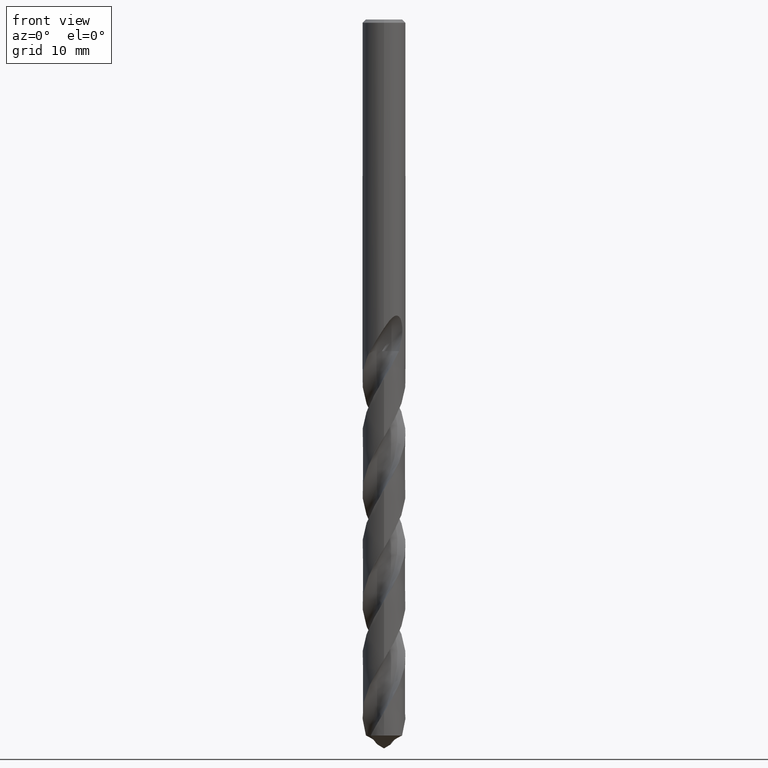
[diagram: clean part render]
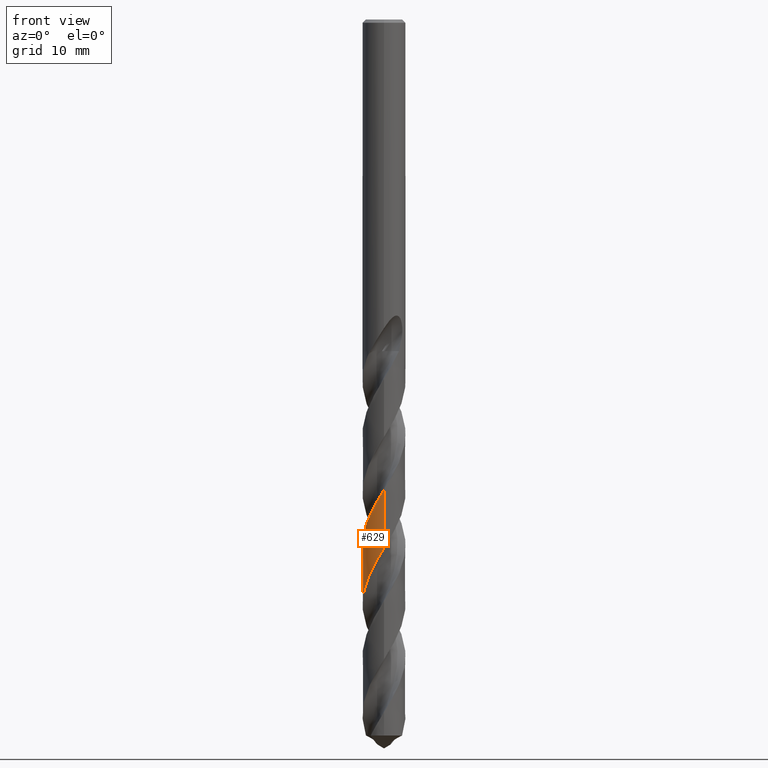
[diagram: same view with one face highlighted and labeled with its STEP entity id]
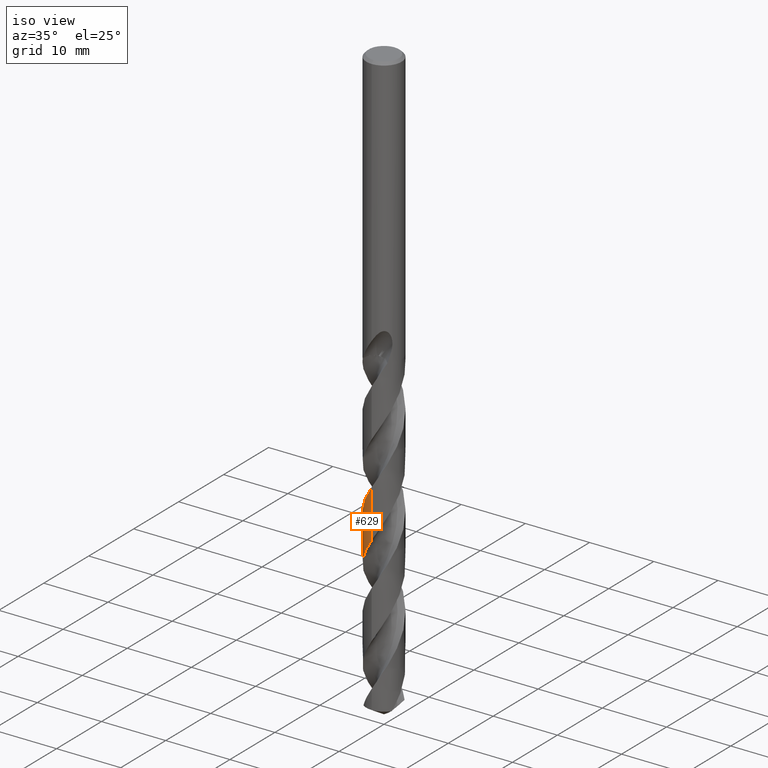
[diagram: same view with one face highlighted and labeled with its STEP entity id]
A machine part, front view. The second image highlights one B-rep face of the part: STEP entity #629.
A second angle (iso view) of the same face is appended — the face is thin or edge-on in the first view.
In plain terms, the highlighted conical surface has half-angle 0 deg.
Its self-contained STEP definition (entity closure, byte-faithful):
#281=VERTEX_POINT('',#781);
#439=EDGE_CURVE('',#281,#655,#955,.T.);
#443=EDGE_CURVE('',#449,#281,#959,.T.);
#449=VERTEX_POINT('',#965);
#539=EDGE_CURVE('',#655,#559,#1062,.T.);
#559=VERTEX_POINT('',#1083);
#629=ADVANCED_FACE('',(#1159),#1160,.T.);
#655=VERTEX_POINT('',#1188);
#719=EDGE_CURVE('',#559,#449,#1259,.T.);
#781=CARTESIAN_POINT('',(7.65517310989221E-014,-2.74993604513519,-59.9792857280727));
#955=B_SPLINE_CURVE_WITH_KNOTS('',3,(#4090,#4091,#4092,#4093,#4094,#4095,#4096,#4097,#4098,#4099,#4100,#4101,#4102,#4103,#4104,#4105,#4106,#4107,#4108,#4109,#4110,#4111,#4112,#4113,#4114,#4115,#4116,#4117,#4118,#4119,#4120,#4121,#4122,#4123,#4124,#4125,#4126,#4127,#4128,#4129,#4130,#4131,#4132,#4133,#4134,#4135,#4136,#4137,#4138,#4139,#4140,#4141,#4142,#4143,#4144,#4145,#4146,#4147,#4148,#4149,#4150,#4151,#4152,#4153,#4154,#4155,#4156,#4157,#4158,#4159,#4160,#4161,#4162,#4163,#4164,#4165,#4166,#4167,#4168,#4169,#4170,#4171,#4172,#4173,#4174,#4175,#4176,#4177,#4178,#4179,#4180,#4181,#4182,#4183,#4184,#4185,#4186,#4187,#4188,#4189,#4190,#4191,#4192,#4193,#4194,#4195,#4196,#4197,#4198,#4199,#4200,#4201,#4202,#4203,#4204,#4205,#4206,#4207,#4208,#4209,#4210,#4211,#4212,#4213,#4214,#4215,#4216,#4217,#4218,#4219,#4220,#4221,#4222,#4223,#4224,#4225,#4226,#4227,#4228,#4229,#4230,#4231,#4232,#4233,#4234,#4235,#4236,#4237,#4238,#4239,#4240,#4241,#4242,#4243,#4244,#4245,#4246,#4247,#4248,#4249,#4250,#4251,#4252,#4253,#4254,#4255,#4256,#4257,#4258,#4259,#4260,#4261,#4262,#4263,#4264,#4265,#4266,#4267),.UNSPECIFIED.,.F.,.F.,(4,2,2,2,2,2,2,2,2,2,2,2,2,2,2,2,2,2,2,2,2,2,2,2,2,2,2,2,2,2,2,2,2,2,2,2,2,2,2,2,2,2,2,2,2,2,2,2,2,2,2,2,2,2,2,2,2,2,2,2,2,2,2,2,2,2,2,2,2,2,2,2,2,2,2,2,2,2,2,2,2,2,2,2,2,2,2,2,4),(0.0,0.140588820206105,0.216394991773302,0.236300292402017,0.249983846422913,0.259429389218857,0.265975424117487,0.270804573774558,0.274554036334517,0.277481782876244,0.279777914966037,0.28158480501633,0.283010454447156,0.605032100374304,0.682048411631251,0.724396175975261,0.760046270123634,0.802415389760059,0.879572661205554,0.981124293821383,1.39876659772418,1.64556568866317,2.11782906224963,3.27480992442227,3.87084418904796,5.32022392279056,5.52729225811691,7.05155099443035,7.48975542280652,8.38688910515015,9.34321251345018,10.2311919895154,11.1829594596095,12.2275320942339,12.8436391510004,13.6774595306437,14.1274023234518,15.0670532109638,15.9495492538524,16.8630148812239,17.7449957716031,18.6688050533717,19.550958581088,20.4711024017112,21.3532704595127,22.2731826720116,23.2130557427232,23.6858159909334,24.5520593073657,25.0327168030143,25.4942694420606,26.3669418235557,26.8473635251333,27.3020830546743,28.1837118865057,28.6638127141034,29.1099341246332,30.0007204592639,30.4804580585441,30.9180506200987,31.8187018495253,32.7739800312088,33.6636370904211,34.6138739745824,35.6604849852681,36.2708607787906,37.1044708933785,37.5539778774058,38.4911066062102,39.3727049487115,40.2866107685227,41.1678935284109,42.0882972831729,42.9695390428673,43.8902538562774,44.7715272820549,45.6915634848673,46.5729125823157,47.4915780773882,48.3728448427724,49.2925230355489,50.0937919575019,50.6757709514412,51.501936378326,52.0398436497128,52.5034392707608,53.322980293566,54.5649933178882,55.8054661136322),.UNSPECIFIED.);
#959=LINE('',#4272,#4273);
#965=CARTESIAN_POINT('',(1.62927083348499E-013,-2.74995129477362,-67.4588724652079));
#1062=LINE('',#5258,#5259);
#1083=CARTESIAN_POINT('',(-6.57420405194411E-013,2.74998023373711,-81.652749157832));
#1159=FACE_OUTER_BOUND('',#6207,.T.);
#1160=CONICAL_SURFACE('',#6208,2.74995,2.03883435910483E-006);
#1188=CARTESIAN_POINT('',(1.64849716867921E-014,2.74996498421071,-74.1732173695017));
#1259=B_SPLINE_CURVE_WITH_KNOTS('',3,(#7970,#7971,#7972,#7973,#7974,#7975,#7976,#7977,#7978,#7979,#7980,#7981,#7982,#7983,#7984,#7985,#7986,#7987,#7988,#7989,#7990,#7991,#7992,#7993,#7994,#7995,#7996,#7997,#7998,#7999,#8000,#8001,#8002,#8003,#8004,#8005,#8006,#8007,#8008,#8009,#8010,#8011,#8012,#8013,#8014,#8015,#8016,#8017,#8018,#8019,#8020,#8021,#8022,#8023,#8024,#8025,#8026,#8027,#8028,#8029,#8030,#8031,#8032,#8033,#8034,#8035,#8036,#8037,#8038,#8039,#8040,#8041,#8042,#8043,#8044,#8045,#8046,#8047,#8048,#8049,#8050,#8051,#8052,#8053,#8054,#8055,#8056,#8057,#8058,#8059,#8060,#8061,#8062,#8063,#8064,#8065,#8066,#8067,#8068,#8069,#8070,#8071,#8072,#8073,#8074,#8075,#8076,#8077,#8078,#8079,#8080,#8081,#8082,#8083,#8084,#8085,#8086,#8087,#8088,#8089,#8090,#8091,#8092,#8093,#8094,#8095,#8096,#8097,#8098,#8099,#8100,#8101,#8102,#8103,#8104,#8105,#8106,#8107,#8108,#8109,#8110,#8111,#8112,#8113,#8114,#8115,#8116,#8117,#8118,#8119,#8120,#8121,#8122,#8123,#8124,#8125),.UNSPECIFIED.,.F.,.F.,(4,2,2,2,2,2,2,2,2,2,2,2,2,2,2,2,2,2,2,2,2,2,2,2,2,2,2,2,2,2,2,2,2,2,2,2,2,2,2,2,2,2,2,2,2,2,2,2,2,2,2,2,2,2,2,2,2,2,2,2,2,2,2,2,2,2,2,2,2,2,2,2,2,2,2,2,2,4),(0.0,0.958681812453004,1.42279214784369,2.32930747449646,3.24913789640782,4.12304033759562,5.01878933135682,5.25202407512032,5.96763729708228,6.88346046908363,7.11253215243259,7.47354410330587,8.48621047270233,8.94993901807418,9.68170474262535,10.5983958426063,11.5096810710679,12.4257870852803,13.3394869818861,14.2550886814,15.1711346145442,16.0863519210077,17.0046875133906,17.9085522677297,18.8296778609539,20.2906136818509,20.4640657949844,21.4908594426852,21.9545803036435,22.6877352532038,23.6043587795395,24.5156655501266,25.4214793567687,26.3196177562414,27.2650010747521,28.1643602498584,29.0792952395591,29.9986253209663,30.8804481221597,31.803666438581,32.6013160345856,33.0662587615269,33.8340563995323,34.7530018459168,34.9828238732529,35.3437852641017,36.3604685507797,36.8257682862252,37.5602226954175,38.4800430137098,39.3943400610957,40.3135267780704,41.2303030721472,42.1489776609391,43.0681696575775,43.98652992492,44.9079238337339,45.8148048632456,46.7390493347768,48.1448353543361,48.3515896284398,50.0949716098029,50.199449755735,51.8501597761085,52.3291725675976,53.1082002077543,53.6315873530301,54.2510773953983,55.3426974441594,56.0465085868151,56.5008652789789,56.5861794289881,56.7697692110666,56.8322002359557,56.8942205234714,56.9828736804837,57.209423393245,57.7564193762052),.UNSPECIFIED.);
#4090=CARTESIAN_POINT('',(-1.9113919779581,1.97700044832147,-42.305));
#4091=CARTESIAN_POINT('',(-1.894743940104,1.99309612217607,-42.3457419595829));
#4092=CARTESIAN_POINT('',(-1.87783038380539,2.0090424523,-42.3865415338449));
#4093=CARTESIAN_POINT('',(-1.85130960978791,2.03341181438453,-42.4492797021151));
#4094=CARTESIAN_POINT('',(-1.84193920616107,2.04190433824194,-42.4712189937783));
#4095=CARTESIAN_POINT('',(-1.82997803973447,2.05259439377379,-42.4989100176442));
#4096=CARTESIAN_POINT('',(-1.82748413524038,2.05481512942488,-42.5046666530434));
#4097=CARTESIAN_POINT('',(-1.82326438257404,2.05855888580528,-42.5143779523837));
#4098=CARTESIAN_POINT('',(-1.82154226383911,2.06008289530852,-42.5183330987502));
#4099=CARTESIAN_POINT('',(-1.81862595972252,2.06265718805151,-42.5250170322478));
#4100=CARTESIAN_POINT('',(-1.81743350733632,2.06370795871484,-42.5277461347274));
#4101=CARTESIAN_POINT('',(-1.81541205586459,2.06548611650775,-42.5323658748261));
#4102=CARTESIAN_POINT('',(-1.81458387030021,2.06621374272279,-42.5342566915751));
#4103=CARTESIAN_POINT('',(-1.81314343512941,2.06747774332619,-42.5375420384601));
#4104=CARTESIAN_POINT('',(-1.8125315277476,2.06801421966841,-42.5389366493453));
#4105=CARTESIAN_POINT('',(-1.81144380923533,2.06896699887436,-42.5414138590457));
#4106=CARTESIAN_POINT('',(-1.81096816036643,2.06938335043364,-42.542496497705));
#4107=CARTESIAN_POINT('',(-1.81012067307331,2.0701246685709,-42.5444243800094));
#4108=CARTESIAN_POINT('',(-1.80974893051702,2.07044966435778,-42.5452696484809));
#4109=CARTESIAN_POINT('',(-1.80908537965989,2.07102945809012,-42.5467777526635));
#4110=CARTESIAN_POINT('',(-1.80879362874882,2.07128427389434,-42.5474406041927));
#4111=CARTESIAN_POINT('',(-1.80827212872676,2.07173955875016,-42.5486250224364));
#4112=CARTESIAN_POINT('',(-1.80804241451758,2.07194003871035,-42.5491465989439));
#4113=CARTESIAN_POINT('',(-1.80763135351609,2.07229866618141,-42.5500796721625));
#4114=CARTESIAN_POINT('',(-1.8074500280844,2.07245682046255,-42.5504911751023));
#4115=CARTESIAN_POINT('',(-1.76630348449106,2.10833583501807,-42.6438493348147));
#4116=CARTESIAN_POINT('',(-1.72450002092678,2.14270816188777,-42.7340307008702));
#4117=CARTESIAN_POINT('',(-1.66949735191186,2.18515778825007,-42.8473510876451));
#4118=CARTESIAN_POINT('',(-1.6587954913433,2.19329340667042,-42.8691709178372));
#4119=CARTESIAN_POINT('',(-1.64205484811177,2.20582585224884,-42.9029832185778));
#4120=CARTESIAN_POINT('',(-1.63609024785174,2.21025359588104,-42.9149685820559));
#4121=CARTESIAN_POINT('',(-1.62505438196182,2.21837657675527,-42.9370386361662));
#4122=CARTESIAN_POINT('',(-1.61999310877393,2.22207537546535,-42.9471199726858));
#4123=CARTESIAN_POINT('',(-1.60887728777279,2.23014058077048,-42.9691789655213));
#4124=CARTESIAN_POINT('',(-1.60281805132621,2.23449944370693,-42.9811504921269));
#4125=CARTESIAN_POINT('',(-1.58565792644346,2.24673809974392,-43.0149204191345));
#4126=CARTESIAN_POINT('',(-1.57451437672471,2.25456169358416,-43.0366928489186));
#4127=CARTESIAN_POINT('',(-1.54854940154387,2.27250417866659,-43.0871409344355));
#4128=CARTESIAN_POINT('',(-1.53350788815496,2.28268499424364,-43.1161557841741));
#4129=CARTESIAN_POINT('',(-1.4551293410424,2.33458290225321,-43.2671417223702));
#4130=CARTESIAN_POINT('',(-1.39081285657444,2.37342684167067,-43.3896236930033));
#4131=CARTESIAN_POINT('',(-1.28693975794124,2.43057393314012,-43.5840942157036));
#4132=CARTESIAN_POINT('',(-1.24790541059174,2.45084182394499,-43.6564587497205));
#4133=CARTESIAN_POINT('',(-1.13297941863556,2.50706725061463,-43.8671730737131));
#4134=CARTESIAN_POINT('',(-1.055779199868,2.54054582447,-44.0056649378213));
#4135=CARTESIAN_POINT('',(-0.784564993522744,2.64365036163018,-44.4832395295707));
#4136=CARTESIAN_POINT('',(-0.584195309418614,2.695052183815,-44.8203688155056));
#4137=CARTESIAN_POINT('',(-0.274421229513238,2.7382450589428,-45.3337435102955));
#4138=CARTESIAN_POINT('',(-0.168420952684127,2.74679720194915,-45.5081579040113));
#4139=CARTESIAN_POINT('',(0.195869080430607,2.75504923627413,-46.1075344786688));
#4140=CARTESIAN_POINT('',(0.453781917847988,2.72451261758523,-46.5304586777404));
#4141=CARTESIAN_POINT('',(0.73951747220665,2.64886429901515,-47.0155984959263));
#4142=CARTESIAN_POINT('',(0.775034302211687,2.63869096751904,-47.0762139747045));
#4143=CARTESIAN_POINT('',(1.07018736651325,2.54767586657952,-47.5833962872619));
#4144=CARTESIAN_POINT('',(1.31678658674724,2.42941522872776,-48.0282795587887));
#4145=CARTESIAN_POINT('',(1.60672203807683,2.23306484294692,-48.6032562272426));
#4146=CARTESIAN_POINT('',(1.66953537333916,2.1864991285998,-48.7315508866097));
#4147=CARTESIAN_POINT('',(1.8545904790876,2.03669042850556,-49.1229293086693));
#4148=CARTESIAN_POINT('',(1.96993634707983,1.92535584742073,-49.3856035782784));
#4149=CARTESIAN_POINT('',(2.18692302562782,1.67586084770147,-49.9287683755805));
#4150=CARTESIAN_POINT('',(2.28662948119147,1.53702518819936,-50.2079792898446));
#4151=CARTESIAN_POINT('',(2.45285571090553,1.25324281036752,-50.7485747308074));
#4152=CARTESIAN_POINT('',(2.52096151173784,1.10991083596024,-51.0085634729712));
#4153=CARTESIAN_POINT('',(2.63573101125555,0.802379541817631,-51.5477453499152));
#4154=CARTESIAN_POINT('',(2.68022281830354,0.638176126017676,-51.8257033823259));
#4155=CARTESIAN_POINT('',(2.74119327253798,0.287438197538147,-52.410930441962));
#4156=CARTESIAN_POINT('',(2.75437977071265,0.101067769026533,-52.716533026145));
#4157=CARTESIAN_POINT('',(2.74519013097768,-0.195177919116839,-53.2032353072358));
#4158=CARTESIAN_POINT('',(2.73519344615465,-0.304745752438369,-53.3834660202643));
#4159=CARTESIAN_POINT('',(2.69631182348151,-0.560451040683601,-53.8085125862416));
#4160=CARTESIAN_POINT('',(2.66205445498047,-0.705464494985707,-54.0528002959389));
#4161=CARTESIAN_POINT('',(2.59150653018454,-0.923376692897725,-54.4291380135432));
#4162=CARTESIAN_POINT('',(2.56344185921974,-0.998651223959049,-54.5609479285616));
#4163=CARTESIAN_POINT('',(2.46669019917797,-1.22705589121061,-54.9682336199998));
#4164=CARTESIAN_POINT('',(2.38730089634989,-1.37512660637434,-55.243113590228));
#4165=CARTESIAN_POINT('',(2.2082700175127,-1.64633403979882,-55.7773691160278));
#4166=CARTESIAN_POINT('',(2.11040614796979,-1.77005850605619,-56.0355932244241));
#4167=CARTESIAN_POINT('',(1.89067253284894,-2.00351114085867,-56.5619845645753));
#4168=CARTESIAN_POINT('',(1.76862178961841,-2.11202037441629,-56.8292468265391));
#4169=CARTESIAN_POINT('',(1.5113963907339,-2.30272489480461,-57.3556779930495));
#4170=CARTESIAN_POINT('',(1.3771760981815,-2.38543410698342,-57.6137591432889));
#4171=CARTESIAN_POINT('',(1.08925280603902,-2.53038555926188,-58.1430362968316));
#4172=CARTESIAN_POINT('',(0.935650757564323,-2.59110656088594,-58.413311085189));
#4173=CARTESIAN_POINT('',(0.626711927572781,-2.68218583355171,-58.9428299642358));
#4174=CARTESIAN_POINT('',(0.472196339105899,-2.71366325540887,-59.2009618048157));
#4175=CARTESIAN_POINT('',(0.152594428329954,-2.75060727543127,-59.729219071384));
#4176=CARTESIAN_POINT('',(-0.0118636974025957,-2.75480272318291,-59.9984301478189));
#4177=CARTESIAN_POINT('',(-0.332643878497826,-2.73427425943416,-60.5268815926462));
#4178=CARTESIAN_POINT('',(-0.488575043159733,-2.7107657880878,-60.7850189552561));
#4179=CARTESIAN_POINT('',(-0.801388590209355,-2.63569848445957,-61.313215245074));
#4180=CARTESIAN_POINT('',(-0.957246410360178,-2.58316916435686,-61.5823594477598));
#4181=CARTESIAN_POINT('',(-1.26085268523191,-2.44959610114435,-62.1276650103822));
#4182=CARTESIAN_POINT('',(-1.40786410820337,-2.36817351686965,-62.4025991370344));
#4183=CARTESIAN_POINT('',(-1.61638253769495,-2.22634461038114,-62.8166432148918));
#4184=CARTESIAN_POINT('',(-1.68391674967907,-2.17571131598149,-62.9550594427619));
#4185=CARTESIAN_POINT('',(-1.86825964608187,-2.02377747494107,-63.3476594400581));
#4186=CARTESIAN_POINT('',(-1.97904240589388,-1.91558841225551,-63.6014435197004));
#4187=CARTESIAN_POINT('',(-2.13626296709261,-1.73376238582404,-63.9963409872026));
#4188=CARTESIAN_POINT('',(-2.18931449382984,-1.66627179275821,-64.1371492948268));
#4189=CARTESIAN_POINT('',(-2.28697294539213,-1.52929515138424,-64.4133476745044));
#4190=CARTESIAN_POINT('',(-2.33175240515634,-1.46010692872375,-64.548510111189));
#4191=CARTESIAN_POINT('',(-2.45200056009646,-1.25464815903005,-64.9397633048158));
#4192=CARTESIAN_POINT('',(-2.51911136427516,-1.11379827967663,-65.1954563273553));
#4193=CARTESIAN_POINT('',(-2.60412658952322,-0.887743745742532,-65.592220723369));
#4194=CARTESIAN_POINT('',(-2.63054738428878,-0.806097190189907,-65.7329775087448));
#4195=CARTESIAN_POINT('',(-2.67447070241658,-0.644992536306466,-66.0071403260946));
#4196=CARTESIAN_POINT('',(-2.69234011189845,-0.565779380840568,-66.140326826442));
#4197=CARTESIAN_POINT('',(-2.73447783124955,-0.331064338539394,-66.5322563392861));
#4198=CARTESIAN_POINT('',(-2.74894355235524,-0.174080241074347,-66.7905950824254));
#4199=CARTESIAN_POINT('',(-2.75042047416394,0.0690056205706739,-67.1899411022492));
#4200=CARTESIAN_POINT('',(-2.74693442938412,0.15470458811645,-67.3306205639047));
#4201=CARTESIAN_POINT('',(-2.73249143548126,0.319487197720549,-67.6022038291038));
#4202=CARTESIAN_POINT('',(-2.72209218736565,0.3984826557191,-67.7328978035582));
#4203=CARTESIAN_POINT('',(-2.68071588851726,0.633463204463064,-68.1250434071364));
#4204=CARTESIAN_POINT('',(-2.639614220398,0.787384438734638,-68.3860852415388));
#4205=CARTESIAN_POINT('',(-2.55624608678827,1.01744266016741,-68.7880581081215));
#4206=CARTESIAN_POINT('',(-2.52331180830934,1.0965803959197,-68.9286471362976));
#4207=CARTESIAN_POINT('',(-2.45335882122732,1.24474541740962,-69.197656922076));
#4208=CARTESIAN_POINT('',(-2.41700567591052,1.31393953841101,-69.3258775590304));
#4209=CARTESIAN_POINT('',(-2.29701091803511,1.52047394412079,-69.7184651500956));
#4210=CARTESIAN_POINT('',(-2.20419857832405,1.65216078299673,-69.9824150390563));
#4211=CARTESIAN_POINT('',(-1.99028310466208,1.90529230316044,-70.5268187760242));
#4212=CARTESIAN_POINT('',(-1.86832433113794,2.02502029450222,-70.8060053299845));
#4213=CARTESIAN_POINT('',(-1.61294003940113,2.23291656946981,-71.347303100845));
#4214=CARTESIAN_POINT('',(-1.48129832917294,2.32234351600072,-71.6080250003242));
#4215=CARTESIAN_POINT('',(-1.19452977910804,2.4827774704872,-72.1477582957362));
#4216=CARTESIAN_POINT('',(-1.0391210366474,2.55172190205236,-72.4255305464365));
#4217=CARTESIAN_POINT('',(-0.7013603908703,2.66557478659001,-73.0114606931345));
#4218=CARTESIAN_POINT('',(-0.518629926957203,2.70707957657276,-73.3179430758157));
#4219=CARTESIAN_POINT('',(-0.22479405503743,2.7429292631438,-73.8040231182323));
#4220=CARTESIAN_POINT('',(-0.115900576629982,2.74968185151067,-73.9827514241936));
#4221=CARTESIAN_POINT('',(0.14193035341422,2.7503310453861,-74.4064590828214));
#4222=CARTESIAN_POINT('',(0.290580582954482,2.73861998312973,-74.6509167743349));
#4223=CARTESIAN_POINT('',(0.51681384613341,2.70215931167862,-75.027422639703));
#4224=CARTESIAN_POINT('',(0.595490606534743,2.68591888293623,-75.1592299908118));
#4225=CARTESIAN_POINT('',(0.835710020045469,2.62525226421659,-75.5660351231298));
#4226=CARTESIAN_POINT('',(0.993901624080718,2.56952764970619,-75.8404405253351));
#4227=CARTESIAN_POINT('',(1.28903913496188,2.43423055474508,-76.3742008250527));
#4228=CARTESIAN_POINT('',(1.42627436720807,2.35645725679424,-76.6324084902577));
#4229=CARTESIAN_POINT('',(1.69079076481276,2.17491009344449,-77.1591662138069));
#4230=CARTESIAN_POINT('',(1.81686972298789,2.07073552038612,-77.4268100298672));
#4231=CARTESIAN_POINT('',(2.04482316247691,1.84548068715321,-77.9536645649366));
#4232=CARTESIAN_POINT('',(2.14708452747139,1.72545000327353,-78.2117845089045));
#4233=CARTESIAN_POINT('',(2.33407259657473,1.4633902797538,-78.7403591711091));
#4234=CARTESIAN_POINT('',(2.41735151299653,1.32127614966737,-79.0098958126349));
#4235=CARTESIAN_POINT('',(2.55450163295341,1.03035809709155,-79.5386494649537));
#4236=CARTESIAN_POINT('',(2.60928280931294,0.882501291694487,-79.7967596514392));
#4237=CARTESIAN_POINT('',(2.6948375397916,0.572095154503976,-80.3254178455462));
#4238=CARTESIAN_POINT('',(2.72421132816308,0.40996074543097,-80.5950483000909));
#4239=CARTESIAN_POINT('',(2.75301910979637,0.0895648973630981,-81.1239069373901));
#4240=CARTESIAN_POINT('',(2.75364211036338,-0.0681188907730239,-81.3820282319583));
#4241=CARTESIAN_POINT('',(2.72730137156757,-0.388905588437583,-81.9105007736427));
#4242=CARTESIAN_POINT('',(2.69918831173757,-0.551140717217917,-82.1799363869292));
#4243=CARTESIAN_POINT('',(2.6161827780562,-0.861827266721818,-82.708621037062));
#4244=CARTESIAN_POINT('',(2.56258214132183,-1.01013878710861,-82.966765106176));
#4245=CARTESIAN_POINT('',(2.42771522990677,-1.3021355336447,-83.4948603306889));
#4246=CARTESIAN_POINT('',(2.34570915199048,-1.44463151301865,-83.7638974421305));
#4247=CARTESIAN_POINT('',(2.16121926739554,-1.70771879791792,-84.2921582012522));
#4248=CARTESIAN_POINT('',(2.05996210123386,-1.82859987172364,-84.550279939285));
#4249=CARTESIAN_POINT('',(1.83291728270958,-2.05665998727706,-85.0786503124746));
#4250=CARTESIAN_POINT('',(1.70681935016659,-2.16244238203406,-85.3479820111557));
#4251=CARTESIAN_POINT('',(1.45474415378429,-2.3380803966699,-85.8530641459344));
#4252=CARTESIAN_POINT('',(1.33112595264085,-2.41061042804162,-86.0878512088286));
#4253=CARTESIAN_POINT('',(1.10884327984268,-2.5186753836176,-86.4936892325091));
#4254=CARTESIAN_POINT('',(1.01284903141371,-2.55878615465312,-86.66415277779));
#4255=CARTESIAN_POINT('',(0.77569600104172,-2.64244519631212,-87.0774085129419));
#4256=CARTESIAN_POINT('',(0.632813482125305,-2.68025732420502,-87.319726697534));
#4257=CARTESIAN_POINT('',(0.393020022935328,-2.72345853471197,-87.7200498688414));
#4258=CARTESIAN_POINT('',(0.297607299046068,-2.73553153513598,-87.8777553695252));
#4259=CARTESIAN_POINT('',(0.11910199009965,-2.74866217972682,-88.1716109624532));
#4260=CARTESIAN_POINT('',(0.0362746447961319,-2.75100083674864,-88.307489716734));
#4261=CARTESIAN_POINT('',(-0.19286089699842,-2.74712559072385,-88.6841213814559));
#4262=CARTESIAN_POINT('',(-0.338796654542089,-2.7329693138493,-88.9245332766701));
#4263=CARTESIAN_POINT('',(-0.701331706983674,-2.66830211807525,-89.5296536366255));
#4264=CARTESIAN_POINT('',(-0.914214733991664,-2.6030561735881,-89.8924261072658));
#4265=CARTESIAN_POINT('',(-1.31937362968341,-2.42297945779164,-90.6211342687989));
#4266=CARTESIAN_POINT('',(-1.51028904172731,-2.30882690434654,-90.983634960521));
#4267=CARTESIAN_POINT('',(-1.68548165781924,-2.17293616591811,-91.3476332976742));
#4272=CARTESIAN_POINT('',(3.36775718344275E-016,-2.74995,-66.8238166488371));
#4273=VECTOR('',#9042,1.0);
#5258=CARTESIAN_POINT('',(-3.36745530194495E-016,2.74995,-66.8238166488371));
#5259=VECTOR('',#9142,1.0);
#6207=EDGE_LOOP('',(#9230,#9231,#9232,#9233));
#6208=AXIS2_PLACEMENT_3D('',#9234,#9235,#9236);
#7970=CARTESIAN_POINT('',(2.30821754607022,-1.49486847582442,-91.3476332976742));
#7971=CARTESIAN_POINT('',(2.39813306983911,-1.3560294234345,-91.0742143959096));
#7972=CARTESIAN_POINT('',(2.47557424961924,-1.20900492288305,-90.8026010990429));
#7973=CARTESIAN_POINT('',(2.57031388986055,-0.981050465631702,-90.3977903149744));
#7974=CARTESIAN_POINT('',(2.59791787344257,-0.905416323288287,-90.2659170589053));
#7975=CARTESIAN_POINT('',(2.66949317889357,-0.6789450026209,-89.8757742398147));
#7976=CARTESIAN_POINT('',(2.703920303134,-0.525379124540095,-89.6167697692461));
#7977=CARTESIAN_POINT('',(2.74649344413811,-0.21144244315608,-89.0969069371662));
#7978=CARTESIAN_POINT('',(2.75412396845778,-0.0518270458821437,-88.83647500566));
#7979=CARTESIAN_POINT('',(2.74197459039813,0.25880506162825,-88.3257892718556));
#7980=CARTESIAN_POINT('',(2.7235816011497,0.409294125897926,-88.0759009378239));
#7981=CARTESIAN_POINT('',(2.66136504363896,0.709725948627026,-87.5720495001548));
#7982=CARTESIAN_POINT('',(2.61704668622481,0.858865982869643,-87.3183914089362));
#7983=CARTESIAN_POINT('',(2.54560370600112,1.04114787332324,-86.9970309543746));
#7984=CARTESIAN_POINT('',(2.53002777738423,1.07844348824295,-86.9306469814606));
#7985=CARTESIAN_POINT('',(2.46340235144649,1.2285947799989,-86.6603936812432));
#7986=CARTESIAN_POINT('',(2.40550130204607,1.33844310730304,-86.455670352706));
#7987=CARTESIAN_POINT('',(2.25682953469662,1.5793725819009,-85.9907162230799));
#7988=CARTESIAN_POINT('',(2.16180152086384,1.70713760476787,-85.7311718348484));
#7989=CARTESIAN_POINT('',(2.02985243467881,1.8557244619966,-85.4049597755318));
#7990=CARTESIAN_POINT('',(2.00283225945746,1.88485308095363,-85.33969525566));
#7991=CARTESIAN_POINT('',(1.93168981813731,1.95829477747384,-85.1714602774634));
#7992=CARTESIAN_POINT('',(1.88671835874694,2.00165349077947,-85.0683266720089));
#7993=CARTESIAN_POINT('',(1.71029857294686,2.160541151385,-84.6770927139747));
#7994=CARTESIAN_POINT('',(1.5691506772324,2.26517972478741,-84.3906732083173));
#7995=CARTESIAN_POINT('',(1.34977999978589,2.39728609972448,-83.9708727491521));
#7996=CARTESIAN_POINT('',(1.27917440996094,2.43568596317679,-83.8391543454273));
#7997=CARTESIAN_POINT('',(1.09332213292274,2.52647751946773,-83.4989133218226));
#7998=CARTESIAN_POINT('',(0.975757004464912,2.57418069241061,-83.2897401137564));
#7999=CARTESIAN_POINT('',(0.704105909841783,2.66306254405338,-82.8203449816656));
#8000=CARTESIAN_POINT('',(0.549038436712994,2.69930180008738,-82.5607829001538));
#8001=CARTESIAN_POINT('',(0.23526476143147,2.74445274748272,-82.0403917436584));
#8002=CARTESIAN_POINT('',(0.0773708167038453,2.7534251539118,-81.7798437006798));
#8003=CARTESIAN_POINT('',(-0.239199858662876,2.74415351642706,-81.2596164273104));
#8004=CARTESIAN_POINT('',(-0.397229642518549,2.72577050020822,-81.0002832720658));
#8005=CARTESIAN_POINT('',(-0.708028122600925,2.6619868854138,-80.4795521995602));
#8006=CARTESIAN_POINT('',(-0.859989728859502,2.61683778581509,-80.2184033869327));
#8007=CARTESIAN_POINT('',(-1.15482484147005,2.50077996935331,-79.6978116499549));
#8008=CARTESIAN_POINT('',(-1.29714095905004,2.4300168785033,-79.4387139115353));
#8009=CARTESIAN_POINT('',(-1.5681579759716,2.26460942926149,-78.9176991718091));
#8010=CARTESIAN_POINT('',(-1.69610578897291,2.17042037505067,-78.6560122535102));
#8011=CARTESIAN_POINT('',(-1.93421744297693,1.96118612822267,-78.135101914018));
#8012=CARTESIAN_POINT('',(-2.04401554244343,1.84648276103262,-77.8762339858399));
#8013=CARTESIAN_POINT('',(-2.24306264843375,1.59885393355892,-77.3549757263935));
#8014=CARTESIAN_POINT('',(-2.33167241715446,1.46658534750697,-77.0928087383472));
#8015=CARTESIAN_POINT('',(-2.48381118188029,1.1905697037293,-76.5747747006063));
#8016=CARTESIAN_POINT('',(-2.54751056067919,1.04739081046956,-76.3192329186604));
#8017=CARTESIAN_POINT('',(-2.65089197526197,0.748697800433271,-75.8007657989042));
#8018=CARTESIAN_POINT('',(-2.68978422701994,0.593897313261281,-75.5380292540196));
#8019=CARTESIAN_POINT('',(-2.75515205102738,0.187539825220406,-74.8613144291669));
#8020=CARTESIAN_POINT('',(-2.76068453829525,-0.0657367737461372,-74.4518718951746));
#8021=CARTESIAN_POINT('',(-2.72833319787555,-0.345538474563375,-73.987323830954));
#8022=CARTESIAN_POINT('',(-2.72441785873842,-0.375167534432998,-73.9379833173342));
#8023=CARTESIAN_POINT('',(-2.69388211835808,-0.58033536352346,-73.596109798283));
#8024=CARTESIAN_POINT('',(-2.65079211446625,-0.753205398546908,-73.3057178008667));
#8025=CARTESIAN_POINT('',(-2.56420321152976,-0.996807085599191,-72.8818847585949));
#8026=CARTESIAN_POINT('',(-2.53398513999428,-1.07128356259492,-72.7501631568818));
#8027=CARTESIAN_POINT('',(-2.44781579326224,-1.25959416172208,-72.4095156066368));
#8028=CARTESIAN_POINT('',(-2.38707027445464,-1.37125492263835,-72.1999371038234));
#8029=CARTESIAN_POINT('',(-2.23328307420264,-1.61244705369764,-71.7301532036682));
#8030=CARTESIAN_POINT('',(-2.13637995365679,-1.73880021605402,-71.4706042368157));
#8031=CARTESIAN_POINT('',(-1.92242026710128,-1.97270061011465,-70.9502147587352));
#8032=CARTESIAN_POINT('',(-1.8060292072567,-2.07977676716044,-70.6896537827717));
#8033=CARTESIAN_POINT('',(-1.556796204381,-2.27228802579947,-70.1723391807344));
#8034=CARTESIAN_POINT('',(-1.42454142800897,-2.35745910513431,-69.9158836839215));
#8035=CARTESIAN_POINT('',(-1.14801927044328,-2.50370952095245,-69.4025119315093));
#8036=CARTESIAN_POINT('',(-1.00459659702146,-2.56461042261361,-69.1458249532728));
#8037=CARTESIAN_POINT('',(-0.701243846213159,-2.66407657438121,-68.621195443886));
#8038=CARTESIAN_POINT('',(-0.54137851491984,-2.70111121439103,-68.3537739228631));
#8039=CARTESIAN_POINT('',(-0.224686776273178,-2.74518702136799,-67.8290811308893));
#8040=CARTESIAN_POINT('',(-0.0689546516893142,-2.75348913795237,-67.5721931021109));
#8041=CARTESIAN_POINT('',(0.244864882010894,-2.74359962438882,-67.0561650306358));
#8042=CARTESIAN_POINT('',(0.40247706348955,-2.72495258827031,-66.7974053565037));
#8043=CARTESIAN_POINT('',(0.713680883630606,-2.66049810313193,-66.2760283207668));
#8044=CARTESIAN_POINT('',(0.866337848180597,-2.61475481996349,-66.0136340281435));
#8045=CARTESIAN_POINT('',(1.15582168996395,-2.49990695284616,-65.5016691035601));
#8046=CARTESIAN_POINT('',(1.29272837675659,-2.43195030145339,-65.2523395632679));
#8047=CARTESIAN_POINT('',(1.56019127080939,-2.27014698627661,-64.7396631981838));
#8048=CARTESIAN_POINT('',(1.68931959065933,-2.17573219746376,-64.4764557069852));
#8049=CARTESIAN_POINT('',(1.913083315697,-1.98022102365947,-63.9877232518089));
#8050=CARTESIAN_POINT('',(2.00996067026106,-1.88183620687268,-63.7621818056478));
#8051=CARTESIAN_POINT('',(2.15112552534042,-1.7150280054763,-63.4039670053915));
#8052=CARTESIAN_POINT('',(2.20032942022107,-1.65141820362577,-63.2722004195877));
#8053=CARTESIAN_POINT('',(2.32309088620991,-1.47750122749083,-62.9221645323393));
#8054=CARTESIAN_POINT('',(2.3916446216295,-1.36376240215227,-62.7032136216289));
#8055=CARTESIAN_POINT('',(2.52375549505346,-1.10367138171176,-62.2241187188613));
#8056=CARTESIAN_POINT('',(2.58331429151498,-0.955995025598625,-61.9645698718984));
#8057=CARTESIAN_POINT('',(2.64141088306235,-0.765960752845454,-61.6383574266891));
#8058=CARTESIAN_POINT('',(2.65219816862788,-0.727726732236753,-61.5730997410697));
#8059=CARTESIAN_POINT('',(2.67777148011164,-0.628959362155211,-61.4052325146652));
#8060=CARTESIAN_POINT('',(2.69131488592176,-0.568201637748038,-61.3024615250206));
#8061=CARTESIAN_POINT('',(2.7350725089102,-0.334970977787199,-60.9114218477059));
#8062=CARTESIAN_POINT('',(2.75090510185151,-0.159882119005357,-60.6248377442927));
#8063=CARTESIAN_POINT('',(2.74942695239889,0.0962882534975627,-60.2048702970248));
#8064=CARTESIAN_POINT('',(2.74543496171502,0.176560061123415,-60.0731515177871));
#8065=CARTESIAN_POINT('',(2.7261421929039,0.382534746076145,-59.7328503162682));
#8066=CARTESIAN_POINT('',(2.70562653336733,0.507774846382919,-59.5236172387271));
#8067=CARTESIAN_POINT('',(2.64000140642445,0.785998693074039,-59.0541548242983));
#8068=CARTESIAN_POINT('',(2.59016866559145,0.937247703498155,-58.7945856018669));
#8069=CARTESIAN_POINT('',(2.46528686108334,1.22860052070918,-58.274205646152));
#8070=CARTESIAN_POINT('',(2.39071521343612,1.36804431683075,-58.013675531011));
#8071=CARTESIAN_POINT('',(2.2179300937488,1.63343570554281,-57.493472790704));
#8072=CARTESIAN_POINT('',(2.11993367296739,1.75875767350529,-57.2341448591191));
#8073=CARTESIAN_POINT('',(1.90361818486758,1.99084081481052,-56.7134228574421));
#8074=CARTESIAN_POINT('',(1.78593396976424,2.09704408038139,-56.4522778021423));
#8075=CARTESIAN_POINT('',(1.53331020703274,2.28827704114192,-55.9316970515612));
#8076=CARTESIAN_POINT('',(1.39878543092719,2.37290699987336,-55.6726059601902));
#8077=CARTESIAN_POINT('',(1.11642901526513,2.51811379887217,-55.1515866400359));
#8078=CARTESIAN_POINT('',(0.969377109998385,2.57828306635565,-54.8898898902656));
#8079=CARTESIAN_POINT('',(0.666729528237099,2.67257478161646,-54.3689541824271));
#8080=CARTESIAN_POINT('',(0.511617856005423,2.70656253729744,-54.1100731356107));
#8081=CARTESIAN_POINT('',(0.196560183166645,2.74750037080278,-53.5888139938134));
#8082=CARTESIAN_POINT('',(0.0375075424166278,2.75424987310705,-53.3266581876139));
#8083=CARTESIAN_POINT('',(-0.277335602417336,2.74036310329695,-52.8086487581178));
#8084=CARTESIAN_POINT('',(-0.432729477945886,2.72016794176711,-52.5531188579623));
#8085=CARTESIAN_POINT('',(-0.741546313741802,2.65285110179338,-52.0346623405585));
#8086=CARTESIAN_POINT('',(-0.893947540436402,2.60542581408121,-51.7719277780853));
#8087=CARTESIAN_POINT('',(-1.26529840794197,2.45350122837065,-51.1122225247769));
#8088=CARTESIAN_POINT('',(-1.47607781145787,2.33272562173477,-50.7191374444918));
#8089=CARTESIAN_POINT('',(-1.69639547942945,2.16461180312611,-50.2624411904187));
#8090=CARTESIAN_POINT('',(-1.7241768264189,2.14254818911412,-50.2038513003707));
#8091=CARTESIAN_POINT('',(-1.98226618141997,1.92930784443316,-49.6518733584037));
#8092=CARTESIAN_POINT('',(-2.18013431331934,1.70247303677305,-49.1680736041789));
#8093=CARTESIAN_POINT('',(-2.34702434823242,1.43311508480262,-48.645345149161));
#8094=CARTESIAN_POINT('',(-2.35630327793351,1.41780734834912,-48.6157906542205));
#8095=CARTESIAN_POINT('',(-2.51003287191124,1.15850164394288,-48.1185975930548));
#8096=CARTESIAN_POINT('',(-2.61604686917939,0.89374785342658,-47.658941937838));
#8097=CARTESIAN_POINT('',(-2.69820694619825,0.537084127995541,-47.0563494357288));
#8098=CARTESIAN_POINT('',(-2.71309908856399,0.455969207107773,-46.9202924668124));
#8099=CARTESIAN_POINT('',(-2.74259630538864,0.241210491326114,-46.5639728321061));
#8100=CARTESIAN_POINT('',(-2.75111767887882,0.106943770280784,-46.3443178841202));
#8101=CARTESIAN_POINT('',(-2.74886422993273,-0.117907345426641,-45.9757566663716));
#8102=CARTESIAN_POINT('',(-2.74350695225038,-0.208010188260177,-45.8278576368685));
#8103=CARTESIAN_POINT('',(-2.72223090951514,-0.403491273583248,-45.5040263634462));
#8104=CARTESIAN_POINT('',(-2.70456470303294,-0.508631357709242,-45.3276402662241));
#8105=CARTESIAN_POINT('',(-2.63887912481626,-0.796033347762067,-44.8425614704086));
#8106=CARTESIAN_POINT('',(-2.57821554987685,-0.974956178743346,-44.5363231888394));
#8107=CARTESIAN_POINT('',(-2.44850371538049,-1.25764222688035,-44.0290945157706));
#8108=CARTESIAN_POINT('',(-2.39074212829876,-1.36404605884254,-43.8335421965023));
#8109=CARTESIAN_POINT('',(-2.28588081473569,-1.53057929836632,-43.5024770619933));
#8110=CARTESIAN_POINT('',(-2.24292008762455,-1.59271251362049,-43.3723341182285));
#8111=CARTESIAN_POINT('',(-2.190192847603,-1.66289149686055,-43.2156905752806));
#8112=CARTESIAN_POINT('',(-2.18181602610089,-1.67386604849448,-43.1908940705136));
#8113=CARTESIAN_POINT('',(-2.15528836735803,-1.70808814145073,-43.1125979170905));
#8114=CARTESIAN_POINT('',(-2.14356928241826,-1.72274282412267,-43.0773816567831));
#8115=CARTESIAN_POINT('',(-2.11993125366533,-1.75155328516953,-43.0124015341785));
#8116=CARTESIAN_POINT('',(-2.11382136607518,-1.75892324894536,-42.9959829370672));
#8117=CARTESIAN_POINT('',(-2.10141034797544,-1.77373186111741,-42.9633867241116));
#8118=CARTESIAN_POINT('',(-2.09511300328706,-1.78116703466919,-42.9472141830656));
#8119=CARTESIAN_POINT('',(-2.07953093993472,-1.79936282410739,-42.9080894270934));
#8120=CARTESIAN_POINT('',(-2.07012999064773,-1.81017416729127,-42.8852215779283));
#8121=CARTESIAN_POINT('',(-2.03583711226412,-1.84897489321025,-42.8044205531896));
#8122=CARTESIAN_POINT('',(-2.00966727936628,-1.87744692845331,-42.7474416867527));
#8123=CARTESIAN_POINT('',(-1.91455360748062,-1.97632219019522,-42.5560347463538));
#8124=CARTESIAN_POINT('',(-1.83853924081739,-2.04798517068584,-42.4282220829163));
#8125=CARTESIAN_POINT('',(-1.75231167775319,-2.11928144664075,-42.305));
#9042=DIRECTION('',(-2.49676951054942E-022,2.03883435910342E-006,0.999999999997922));
#9142=DIRECTION('',(-2.49676951054942E-022,2.03883435910342E-006,-0.999999999997922));
#9230=ORIENTED_EDGE('',*,*,#539,.T.);
#9231=ORIENTED_EDGE('',*,*,#719,.T.);
#9232=ORIENTED_EDGE('',*,*,#443,.T.);
#9233=ORIENTED_EDGE('',*,*,#439,.T.);
#9234=CARTESIAN_POINT('',(0.0,0.0,-66.8238166488371));
#9235=DIRECTION('',(0.0,-0.0,-1.0));
#9236=DIRECTION('',(0.0,1.0,0.0));